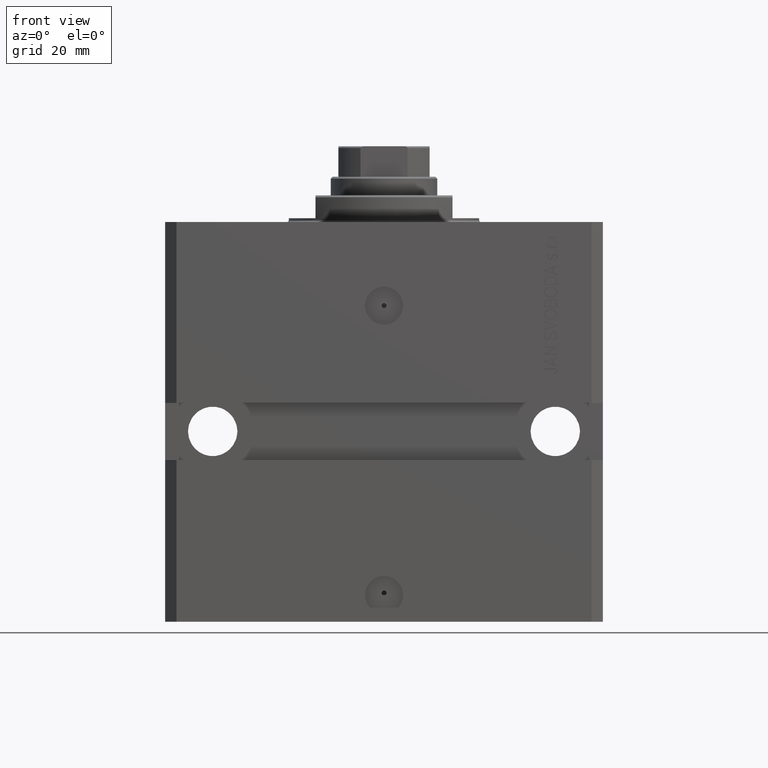
[diagram: clean part render]
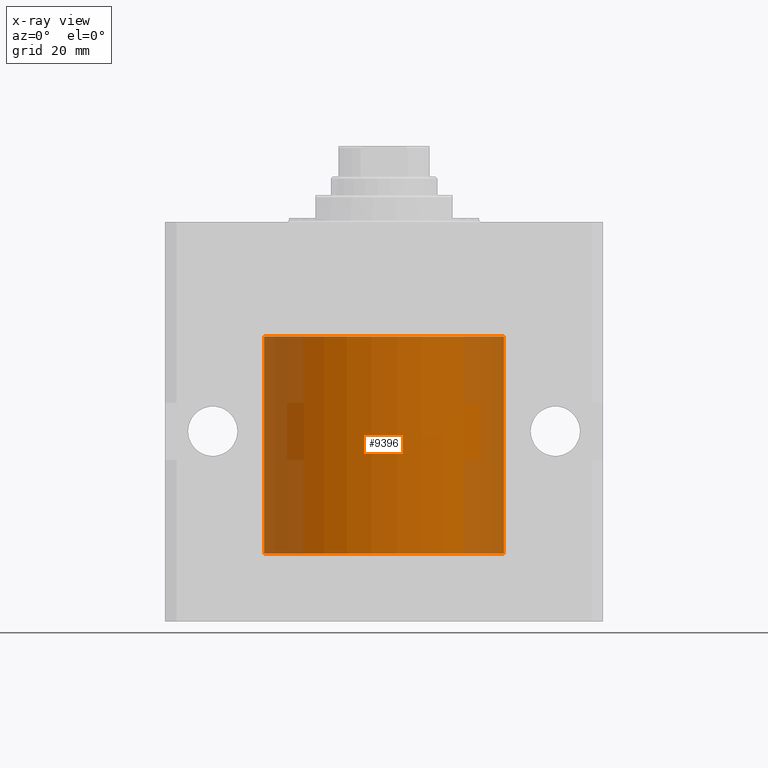
[diagram: x-ray — body ghosted, one internal face saturated and labeled with its STEP entity id]
A machine part, front view, then the same camera in x-ray: the body is ghosted and one INTERNAL B-rep face — a face not visible from any outside direction — is saturated and labeled: STEP entity #9396.
In plain terms, the highlighted cylindrical surface (partial cylindrical patch) has radius 31.5 mm, axis along (0, 0, 1).
Its self-contained STEP definition (entity closure, byte-faithful):
#285 = VERTEX_POINT ( 'NONE', #26094 ) ;
#2175 = ORIENTED_EDGE ( 'NONE', *, *, #33083, .F. ) ;
#2522 = CARTESIAN_POINT ( 'NONE',  ( 31.49379899281760942, -0.6250000000000288658, -84.16477543879955192 ) ) ;
#3945 = EDGE_CURVE ( 'NONE', #36673, #285, #4927, .T. ) ;
#4927 = LINE ( 'NONE', #19125, #6557 ) ;
#5995 = CARTESIAN_POINT ( 'NONE',  ( 31.49379899281761652, -0.6250000000000288658, -83.99999999999998579 ) ) ;
#6516 = DIRECTION ( 'NONE',  ( 1.000000000000000000, 0.000000000000000000, 0.000000000000000000 ) ) ;
#6543 = CARTESIAN_POINT ( 'NONE',  ( 31.50000000000000000, -0.1632157801386601437, -83.37499999999985789 ) ) ;
#6557 = VECTOR ( 'NONE', #12358, 1000.000000000000000 ) ;
#7083 = CARTESIAN_POINT ( 'NONE',  ( 31.50000000000000000, -2.492939093807799249E-15, -84.62499999999998579 ) ) ;
#9117 = CYLINDRICAL_SURFACE ( 'NONE', #26354, 31.50000000000000000 ) ;
#9396 = ADVANCED_FACE ( 'NONE', ( #29606 ), #9117, .F. ) ;
#10027 = CARTESIAN_POINT ( 'NONE',  ( 31.49528358446202603, -0.5571510427948113131, -83.67320073400603064 ) ) ;
#10343 = EDGE_CURVE ( 'NONE', #30406, #34916, #38803, .T. ) ;
#10721 = ORIENTED_EDGE ( 'NONE', *, *, #3945, .T. ) ;
#11017 = CIRCLE ( 'NONE', #37110, 31.50000000000000000 ) ;
#11540 = VERTEX_POINT ( 'NONE', #40604 ) ;
#12358 = DIRECTION ( 'NONE',  ( -0.000000000000000000, -0.000000000000000000, 1.000000000000000000 ) ) ;
#12992 = ORIENTED_EDGE ( 'NONE', *, *, #17612, .T. ) ;
#13129 = CARTESIAN_POINT ( 'NONE',  ( 0.000000000000000000, 0.000000000000000000, -30.10000000000000142 ) ) ;
#13391 = CARTESIAN_POINT ( 'NONE',  ( 31.50000000000000000, 0.000000000000000000, -30.10000000000000142 ) ) ;
#13843 = CARTESIAN_POINT ( 'NONE',  ( 31.49851597466318864, -0.3267811800504749065, -84.55717014794232966 ) ) ;
#15124 = AXIS2_PLACEMENT_3D ( 'NONE', #13129, #41251, #44505 ) ;
#16408 = VECTOR ( 'NONE', #29321, 1000.000000000000000 ) ;
#16470 = ORIENTED_EDGE ( 'NONE', *, *, #39373, .T. ) ;
#16607 = VECTOR ( 'NONE', #40723, 1000.000000000000000 ) ;
#16710 = CARTESIAN_POINT ( 'NONE',  ( 31.49527967292564057, -0.5573624224366642288, -84.32645312595958842 ) ) ;
#17612 = EDGE_CURVE ( 'NONE', #11540, #30406, #31983, .T. ) ;
#19125 = CARTESIAN_POINT ( 'NONE',  ( -31.50000000000000000, 3.857637417314161900E-15, -87.10000000000000853 ) ) ;
#19383 = CARTESIAN_POINT ( 'NONE',  ( 0.000000000000000000, 0.000000000000000000, -87.10000000000000853 ) ) ;
#19586 = LINE ( 'NONE', #33296, #16607 ) ;
#20717 = DIRECTION ( 'NONE',  ( 0.000000000000000000, 0.000000000000000000, 1.000000000000000000 ) ) ;
#20744 = CARTESIAN_POINT ( 'NONE',  ( 31.49379899281761652, -0.6250000000000288658, -83.99999999999998579 ) ) ;
#24238 = CARTESIAN_POINT ( 'NONE',  ( 31.49379899281761652, -0.6250000000000287548, -83.83504963528476139 ) ) ;
#25739 = ORIENTED_EDGE ( 'NONE', *, *, #27227, .F. ) ;
#26094 = CARTESIAN_POINT ( 'NONE',  ( -31.50000000000000000, 3.857637417314161900E-15, -30.10000000000000142 ) ) ;
#26354 = AXIS2_PLACEMENT_3D ( 'NONE', #19383, #30058, #40516 ) ;
#27227 = EDGE_CURVE ( 'NONE', #36673, #35213, #11017, .T. ) ;
#29321 = DIRECTION ( 'NONE',  ( -0.000000000000000000, -0.000000000000000000, 1.000000000000000000 ) ) ;
#29606 = FACE_OUTER_BOUND ( 'NONE', #32248, .T. ) ;
#30058 = DIRECTION ( 'NONE',  ( -0.000000000000000000, -0.000000000000000000, 1.000000000000000000 ) ) ;
#30406 = VERTEX_POINT ( 'NONE', #32537 ) ;
#31983 = B_SPLINE_CURVE_WITH_KNOTS ( 'NONE', 3,
 ( #45574, #6543, #44666, #10027, #24238, #20744 ),
 .UNSPECIFIED., .F., .F.,
 ( 4, 2, 4 ),
 ( 0.001954083649707730446, 0.002442753259884901558, 0.002931422870062072236 ),
 .UNSPECIFIED. ) ;
#32248 = EDGE_LOOP ( 'NONE', ( #25739, #10721, #16470, #2175, #12992, #38112, #43390 ) ) ;
#32537 = CARTESIAN_POINT ( 'NONE',  ( 31.49379899281761652, -0.6250000000000288658, -83.99999999999998579 ) ) ;
#33028 = CARTESIAN_POINT ( 'NONE',  ( 31.50000000000000000, 0.000000000000000000, -87.10000000000000853 ) ) ;
#33083 = EDGE_CURVE ( 'NONE', #11540, #35612, #40230, .T. ) ;
#33296 = CARTESIAN_POINT ( 'NONE',  ( 31.50000000000000000, 0.000000000000000000, -87.10000000000000853 ) ) ;
#34916 = VERTEX_POINT ( 'NONE', #41902 ) ;
#35213 = VERTEX_POINT ( 'NONE', #42999 ) ;
#35612 = VERTEX_POINT ( 'NONE', #13391 ) ;
#36673 = VERTEX_POINT ( 'NONE', #38676 ) ;
#37110 = AXIS2_PLACEMENT_3D ( 'NONE', #38364, #20717, #6516 ) ;
#38112 = ORIENTED_EDGE ( 'NONE', *, *, #10343, .T. ) ;
#38364 = CARTESIAN_POINT ( 'NONE',  ( 0.000000000000000000, 0.000000000000000000, -87.10000000000000853 ) ) ;
#38676 = CARTESIAN_POINT ( 'NONE',  ( -31.50000000000000000, 3.857637417314161900E-15, -87.10000000000000853 ) ) ;
#38803 = B_SPLINE_CURVE_WITH_KNOTS ( 'NONE', 3,
 ( #5995, #2522, #16710, #13843, #44804, #7083 ),
 .UNSPECIFIED., .F., .F.,
 ( 4, 2, 4 ),
 ( 0.002931422870062072236, 0.003419574257808113277, 0.003907725645554154317 ),
 .UNSPECIFIED. ) ;
#38865 = CIRCLE ( 'NONE', #15124, 31.50000000000000000 ) ;
#39373 = EDGE_CURVE ( 'NONE', #285, #35612, #38865, .T. ) ;
#40230 = LINE ( 'NONE', #33028, #16408 ) ;
#40516 = DIRECTION ( 'NONE',  ( 1.000000000000000000, 0.000000000000000000, 0.000000000000000000 ) ) ;
#40604 = CARTESIAN_POINT ( 'NONE',  ( 31.50000000000006395, 3.442404755096224483E-13, -83.37499999999675993 ) ) ;
#40723 = DIRECTION ( 'NONE',  ( -0.000000000000000000, -0.000000000000000000, 1.000000000000000000 ) ) ;
#41251 = DIRECTION ( 'NONE',  ( 0.000000000000000000, 0.000000000000000000, 1.000000000000000000 ) ) ;
#41902 = CARTESIAN_POINT ( 'NONE',  ( 31.50000000000000000, -2.492939093807799249E-15, -84.62499999999998579 ) ) ;
#42999 = CARTESIAN_POINT ( 'NONE',  ( 31.50000000000000000, 0.000000000000000000, -87.10000000000000853 ) ) ;
#43195 = EDGE_CURVE ( 'NONE', #35213, #34916, #19586, .T. ) ;
#43390 = ORIENTED_EDGE ( 'NONE', *, *, #43195, .F. ) ;
#44505 = DIRECTION ( 'NONE',  ( 1.000000000000000000, 0.000000000000000000, 0.000000000000000000 ) ) ;
#44666 = CARTESIAN_POINT ( 'NONE',  ( 31.49851930977805381, -0.3264760966898029859, -83.44265952683146281 ) ) ;
#44804 = CARTESIAN_POINT ( 'NONE',  ( 31.50000000000000000, -0.1650602271992127057, -84.62500000000000000 ) ) ;
#45574 = CARTESIAN_POINT ( 'NONE',  ( 31.50000000000006395, 3.442404755096224483E-13, -83.37499999999675993 ) ) ;